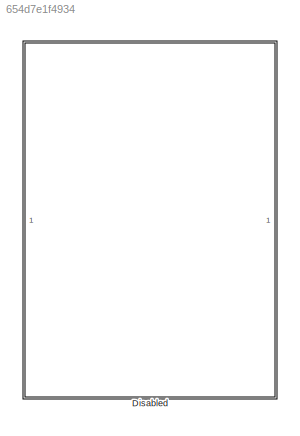
MODEL slx_654d7e1f4934
KIND library
CONFIG AbsTol = auto
CONFIG EnableMultiTasking = off
CONFIG FixedStep = auto
CONFIG MaxStep = auto
CONFIG MinStep = auto
CONFIG RelTol = 1e-3
CONFIG SampleTimeConstraint = Unconstrained
CONFIG SolverName = VariableStepAuto
CONFIG StartTime = 0.0
CONFIG StopTime = 10.0
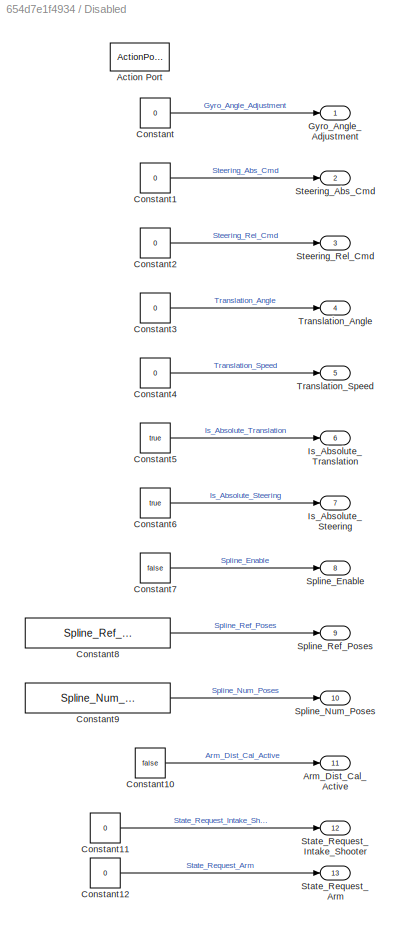
BLOCK [SubSystem] Disabled
  TreatAsAtomicUnit = on
BLOCK [ActionPort] Disabled/Action Port
BLOCK [Outport] Disabled/Arm_Dist_Cal_Active
  Port = 11
BLOCK [Constant] Disabled/Constant
  Value = 0
BLOCK [Constant] Disabled/Constant1
  Value = 0
BLOCK [Constant] Disabled/Constant10
  OutDataTypeStr = boolean
  Value = false
BLOCK [Constant] Disabled/Constant11
  Value = 0
BLOCK [Constant] Disabled/Constant12
  Value = 0
BLOCK [Constant] Disabled/Constant2
  Value = 0
BLOCK [Constant] Disabled/Constant3
  Value = 0
BLOCK [Constant] Disabled/Constant4
  Value = 0
BLOCK [Constant] Disabled/Constant5
  Value = true
BLOCK [Constant] Disabled/Constant6
  Value = true
BLOCK [Constant] Disabled/Constant7
  OutDataTypeStr = boolean
  Value = false
BLOCK [Constant] Disabled/Constant8
  Value = Spline_Ref_Poses_default
BLOCK [Constant] Disabled/Constant9
  OutDataTypeStr = double
  Value = Spline_Num_Poses_default
BLOCK [Outport] Disabled/Gyro_Angle_Adjustment
BLOCK [Outport] Disabled/Is_Absolute_Steering
  Port = 7
BLOCK [Outport] Disabled/Is_Absolute_Translation
  Port = 6
BLOCK [Outport] Disabled/Spline_Enable
  Port = 8
BLOCK [Outport] Disabled/Spline_Num_Poses
  Port = 10
BLOCK [Outport] Disabled/Spline_Ref_Poses
  Port = 9
BLOCK [Outport] Disabled/State_Request_Arm
  Port = 13
BLOCK [Outport] Disabled/State_Request_Intake_Shooter
  Port = 12
BLOCK [Outport] Disabled/Steering_Abs_Cmd
  Port = 2
BLOCK [Outport] Disabled/Steering_Rel_Cmd
  Port = 3
BLOCK [Outport] Disabled/Translation_Angle
  Port = 4
BLOCK [Outport] Disabled/Translation_Speed
  Port = 5
LINE Disabled/Constant10:1 -> Disabled/Arm_Dist_Cal_Active:1
LINE Disabled/Constant11:1 -> Disabled/State_Request_Intake_Shooter:1
LINE Disabled/Constant12:1 -> Disabled/State_Request_Arm:1
LINE Disabled/Constant1:1 -> Disabled/Steering_Abs_Cmd:1
LINE Disabled/Constant2:1 -> Disabled/Steering_Rel_Cmd:1
LINE Disabled/Constant3:1 -> Disabled/Translation_Angle:1
LINE Disabled/Constant4:1 -> Disabled/Translation_Speed:1
LINE Disabled/Constant5:1 -> Disabled/Is_Absolute_Translation:1
LINE Disabled/Constant6:1 -> Disabled/Is_Absolute_Steering:1
LINE Disabled/Constant7:1 -> Disabled/Spline_Enable:1
LINE Disabled/Constant8:1 -> Disabled/Spline_Ref_Poses:1
LINE Disabled/Constant9:1 -> Disabled/Spline_Num_Poses:1
LINE Disabled/Constant:1 -> Disabled/Gyro_Angle_Adjustment:1
